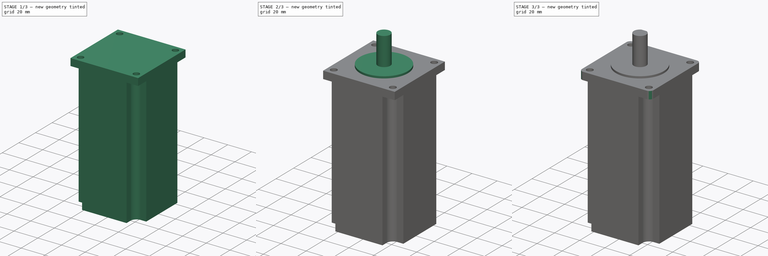
[diagram: build sequence overview — one tinted view per stage of 3, left to right]
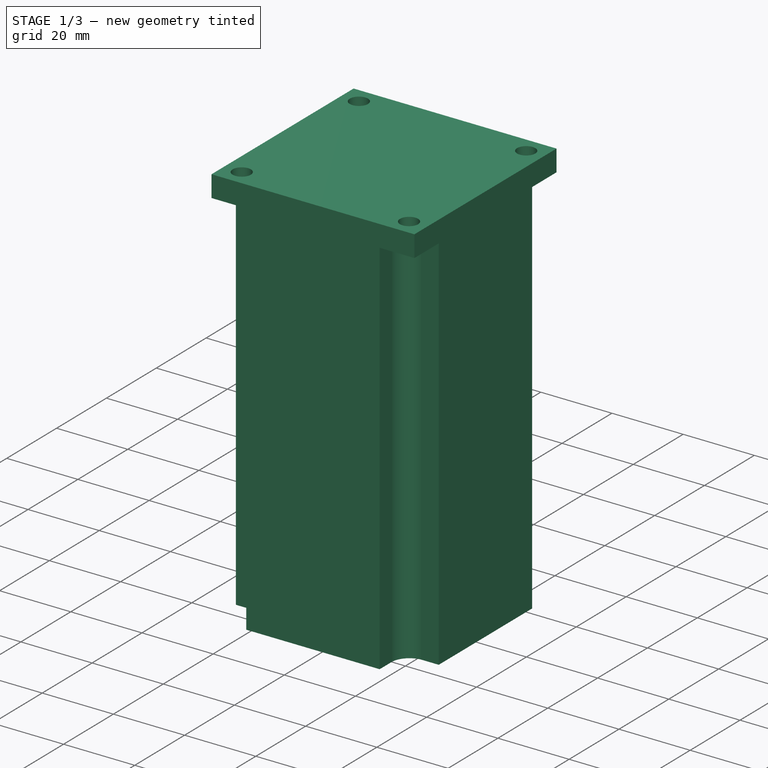
[diagram: stage 1 of 3 — iso view after this stage's code; geometry added in this stage tinted green]
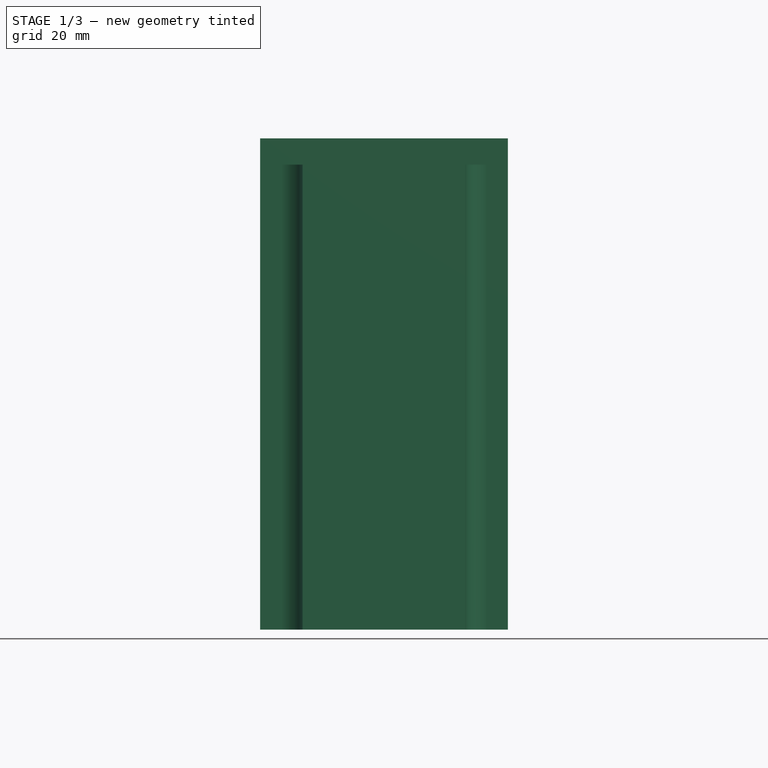
[diagram: stage 1 of 3 — front view after this stage's code; geometry added in this stage tinted green]
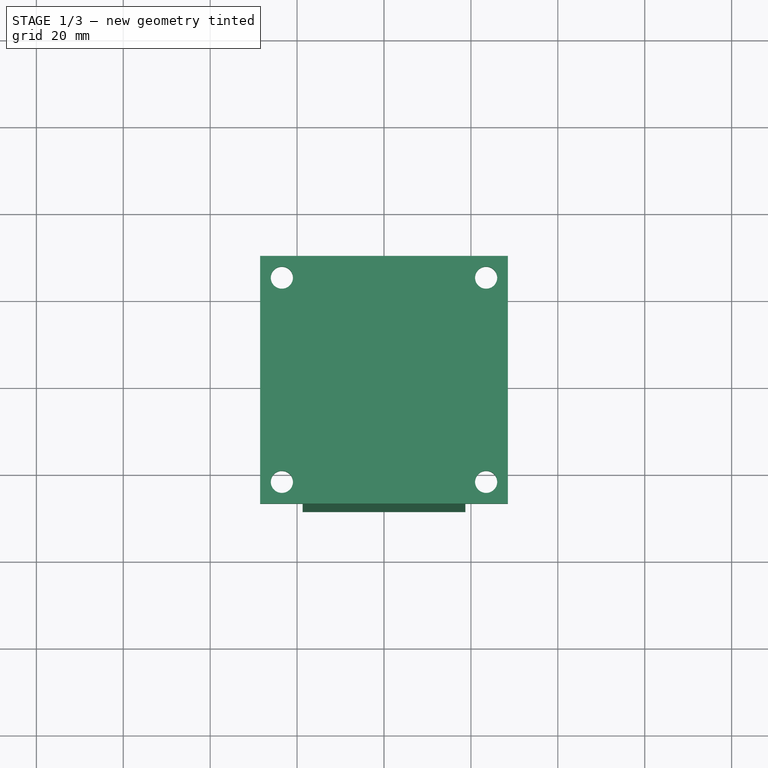
[diagram: stage 1 of 3 — top view after this stage's code; geometry added in this stage tinted green]
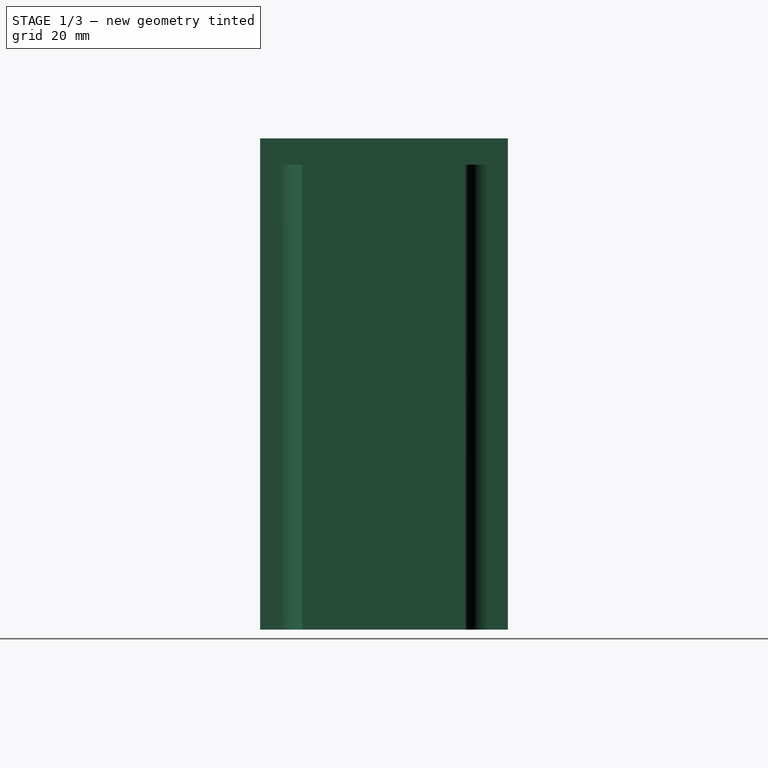
[diagram: stage 1 of 3 — right view after this stage's code; geometry added in this stage tinted green]
FCSTD DOCUMENT  (FreeCAD 0.18R16117 (Git))
Label: 23HS45-4204S
License: CreativeCommons Attribution-ShareAlike
LicenseURL: http://creativecommons.org/licenses/by-sa/4.0/
objects: Sketcher::SketchObject×5, PartDesign::Pad×3, PartDesign::Pocket×2, PartDesign::Fillet×1, PartDesign::Body×1
note: 17 computed .brp shape members not serialized (recipe doc carries the construction recipe); baked Part::Feature solids carry a one-line shape summary decoded from their .brp

FEATURE [Sketcher::SketchObject] Sketch
  MapMode = 5
  Support = -> [XY_Plane]
  sketch-geometry (12):
    g0: LineSegment StartX=-28.5001 StartY=28.5001 StartZ=0 EndX=28.5001 EndY=28.5001 EndZ=0
    g1: LineSegment StartX=28.5001 StartY=28.5001 StartZ=0 EndX=28.5001 EndY=-28.5001 EndZ=0
    g2: LineSegment StartX=28.5001 StartY=-28.5001 StartZ=0 EndX=-28.5001 EndY=-28.5001 EndZ=0
    g3: LineSegment StartX=-28.5001 StartY=-28.5001 StartZ=0 EndX=-28.5001 EndY=28.5001 EndZ=0
    g4: Circle CenterX=-23.5 CenterY=23.5 CenterZ=0 NormalX=0 NormalY=0 NormalZ=1 AngleXU=0 Radius=2.55
    g5: Circle CenterX=23.5 CenterY=23.5 CenterZ=0 NormalX=0 NormalY=0 NormalZ=1 AngleXU=0 Radius=2.55
    g6: Circle CenterX=-23.5 CenterY=-23.5 CenterZ=0 NormalX=0 NormalY=0 NormalZ=1 AngleXU=0 Radius=2.55
    g7: Circle CenterX=23.5 CenterY=-23.5 CenterZ=0 NormalX=0 NormalY=0 NormalZ=1 AngleXU=0 Radius=2.55
    g8: LineSegment [constr] StartX=-23.5 StartY=23.5 StartZ=0 EndX=23.5 EndY=23.5 EndZ=0
    g9: LineSegment [constr] StartX=23.5 StartY=23.5 StartZ=0 EndX=23.5 EndY=-23.5 EndZ=0
    g10: LineSegment [constr] StartX=23.5 StartY=-23.5 StartZ=0 EndX=-23.5 EndY=-23.5 EndZ=0
    g11: LineSegment [constr] StartX=-23.5 StartY=-23.5 StartZ=0 EndX=-23.5 EndY=23.5 EndZ=0
  constraints (32):
    c: Coincident(g0,g1)
    c: Coincident(g1,g2)
    c: Coincident(g2,g3)
    c: Coincident(g3,g0)
    c: Horizontal(g0)
    c: Horizontal(g2)
    c: Vertical(g1)
    c: Vertical(g3)
    c: Symmetric(g0,g0,g-2)
    c: Symmetric(g0,g1,g-1)
    c: Equal(g0,g1)
    c: DistanceY(g3,g3) = 57.0001  'MotorWidth'
    c: Coincident(g8,g9)
    c: Coincident(g9,g10)
    c: Coincident(g10,g11)
    c: Coincident(g11,g8)
    c: Horizontal(g8)
    c: Horizontal(g10)
    c: Vertical(g9)
    c: Vertical(g11)
    c: Symmetric(g9,g8,g-1)
    c: Symmetric(g8,g8,g-2)
    c: Equal(g9,g8)
    c: Coincident(g5,g8)
    c: Coincident(g4,g8)
    c: Coincident(g7,g9)
    c: Coincident(g6,g10)
    c: Equal(g5,g4)
    c: Equal(g4,g6)
    c: Equal(g6,g7)
    c: Radius(g5) = 2.55
    c: DistanceY(g9,g9) = 47
FEATURE [PartDesign::Pad] Pad
  Length = 113.03
  Length2 = 100.076
  Profile = -> Sketch
  Reversed = true
  Type = 0
FEATURE [Sketcher::SketchObject] Sketch001
  MapMode = 5
  Placement = pos=(0,0,-113.03) rot=(1,0,0;3.14159rad)
  Support = -> [Pad]
  sketch-geometry (32):
    g0: LineSegment [constr] StartX=-23.5 StartY=23.5 StartZ=0 EndX=23.5 EndY=23.5 EndZ=0
    g1: LineSegment [constr] StartX=23.5 StartY=23.5 StartZ=0 EndX=23.5 EndY=-23.5 EndZ=0
    g2: LineSegment [constr] StartX=23.5 StartY=-23.5 StartZ=0 EndX=-23.5 EndY=-23.5 EndZ=0
    g3: LineSegment [constr] StartX=-23.5 StartY=-23.5 StartZ=0 EndX=-23.5 EndY=23.5 EndZ=0
    g4: Circle [constr] CenterX=-23.5 CenterY=23.5 CenterZ=0 NormalX=0 NormalY=0 NormalZ=1 AngleXU=0 Radius=4.7625
    g5: Circle [constr] CenterX=23.5 CenterY=23.5 CenterZ=0 NormalX=0 NormalY=0 NormalZ=1 AngleXU=0 Radius=4.7625
    g6: Circle [constr] CenterX=23.5 CenterY=-23.5 CenterZ=0 NormalX=0 NormalY=0 NormalZ=1 AngleXU=0 Radius=4.7625
    g7: Circle [constr] CenterX=-23.5 CenterY=-23.5 CenterZ=0 NormalX=0 NormalY=0 NormalZ=1 AngleXU=0 Radius=4.74008
    g8: LineSegment [constr] StartX=-31.75 StartY=31.75 StartZ=0 EndX=31.75 EndY=31.75 EndZ=0
    g9: LineSegment [constr] StartX=31.75 StartY=31.75 StartZ=0 EndX=31.75 EndY=-31.75 EndZ=0
    g10: LineSegment [constr] StartX=31.75 StartY=-31.75 StartZ=0 EndX=-31.75 EndY=-31.75 EndZ=0
    g11: LineSegment [constr] StartX=-31.75 StartY=-31.75 StartZ=0 EndX=-31.75 EndY=31.75 EndZ=0
    g12: LineSegment StartX=-18.7375 StartY=23.5 StartZ=0 EndX=-18.7375 EndY=31.75 EndZ=0
    g13: LineSegment StartX=-23.5 StartY=18.7375 StartZ=0 EndX=-31.75 EndY=18.7375 EndZ=0
    g14: ArcOfCircle CenterX=-23.7099 CenterY=23.7099 CenterZ=0 NormalX=0 NormalY=0 NormalZ=1 AngleXU=0 Radius=4.9768 StartAngle=4.75457 EndAngle=6.241
    g15: LineSegment StartX=23.5 StartY=18.7375 StartZ=0 EndX=31.75 EndY=18.7375 EndZ=0
    g16: LineSegment StartX=18.7375 StartY=23.5 StartZ=0 EndX=18.7375 EndY=31.75 EndZ=0
    g17: ArcOfCircle CenterX=23.9084 CenterY=23.9084 CenterZ=0 NormalX=0 NormalY=0 NormalZ=1 AngleXU=0 Radius=5.18703 StartAngle=3.22041 EndAngle=4.63357
    g18: LineSegment StartX=18.7375 StartY=-23.5 StartZ=0 EndX=18.7375 EndY=-31.75 EndZ=0
    g19: LineSegment StartX=23.5 StartY=-18.7375 StartZ=0 EndX=31.75 EndY=-18.7375 EndZ=0
    g20: LineSegment StartX=-23.5 StartY=-18.7599 StartZ=0 EndX=-31.75 EndY=-18.7599 EndZ=0
    g21: LineSegment StartX=-18.7599 StartY=-23.5 StartZ=0 EndX=-18.7599 EndY=-31.75 EndZ=0
    g22: ArcOfCircle CenterX=24.0982 CenterY=-24.0982 CenterZ=0 NormalX=0 NormalY=0 NormalZ=1 AngleXU=0 Radius=5.39402 StartAngle=1.68193 EndAngle=3.03046
    g23: ArcOfCircle CenterX=-23.7687 CenterY=-23.7687 CenterZ=0 NormalX=0 NormalY=0 NormalZ=1 AngleXU=0 Radius=5.01598 StartAngle=0.0535933 EndAngle=1.5172
    g24: LineSegment StartX=-31.75 StartY=18.7375 StartZ=0 EndX=-31.75 EndY=31.75 EndZ=0
    g25: LineSegment StartX=-31.75 StartY=-18.7599 StartZ=0 EndX=-31.75 EndY=-31.75 EndZ=0
    g26: LineSegment StartX=-18.7599 StartY=-31.75 StartZ=0 EndX=-31.75 EndY=-31.75 EndZ=0
    g27: LineSegment StartX=18.7375 StartY=-31.75 StartZ=0 EndX=31.75 EndY=-31.75 EndZ=0
    g28: LineSegment StartX=31.75 StartY=-18.7375 StartZ=0 EndX=31.75 EndY=-31.75 EndZ=0
    g29: LineSegment StartX=31.75 StartY=18.7375 StartZ=0 EndX=31.75 EndY=31.75 EndZ=0
    g30: LineSegment StartX=18.7375 StartY=31.75 StartZ=0 EndX=31.75 EndY=31.75 EndZ=0
    g31: LineSegment StartX=-18.7375 StartY=31.75 StartZ=0 EndX=-31.75 EndY=31.75 EndZ=0
  constraints (83):
    c: Coincident(g0,g1)
    c: Coincident(g1,g2)
    c: Coincident(g2,g3)
    c: Coincident(g3,g0)
    c: Horizontal(g2)
    c: Vertical(g1)
    c: Symmetric(g0,g2,g-1)
    c: Symmetric(g0,g0,g-2)
    c: Equal(g0,g3)
    c: DistanceX(g0,g0) = 47
    c: Coincident(g4,g0)
    c: Coincident(g5,g0)
    c: Coincident(g6,g1)
    c: Coincident(g7,g2)
    c: Equal(g6,g5)
    c: Equal(g5,g4)
    c: Radius(g5) = 4.7625
    c: Coincident(g8,g9)
    c: Coincident(g9,g10)
    c: Coincident(g10,g11)
    c: Coincident(g11,g8)
    c: Horizontal(g8)
    c: Vertical(g11)
    c: Symmetric(g9,g10,g-2)
    c: Symmetric(g9,g8,g-1)
    c: Equal(g9,g8)
    c: DistanceY(g9,g9) = 63.5
    c: PointOnObject(g12,g0)
    c: PointOnObject(g12,g8)
    c: Vertical(g12)
    c: Tangent(g12,g4)
    c: PointOnObject(g13,g3)
    c: Horizontal(g13)
    c: PointOnObject(g13,g11)
    c: Tangent(g13,g4)
    c: Coincident(g14,g12)
    c: Coincident(g14,g13)
    c: PointOnObject(g15,g1)
    c: PointOnObject(g15,g9)
    c: Horizontal(g15)
    c: PointOnObject(g16,g0)
    c: PointOnObject(g16,g8)
    c: Vertical(g16)
    c: Tangent(g5,g16)
    c: Tangent(g15,g5)
    c: Coincident(g17,g16)
    c: Coincident(g17,g15)
    c: PointOnObject(g18,g2)
    c: Vertical(g18)
    c: PointOnObject(g19,g1)
    c: PointOnObject(g19,g9)
    c: PointOnObject(g20,g3)
    c: PointOnObject(g21,g2)
    c: Vertical(g21)
    c: Horizontal(g20)
    c: Horizontal(g19)
    c: Tangent(g19,g6)
    c: Tangent(g18,g6)
    c: Coincident(g22,g19)
    c: Coincident(g22,g18)
    c: Tangent(g21,g7)
    c: Tangent(g20,g7)
    c: Coincident(g23,g20)
    c: Coincident(g23,g21)
    c: Coincident(g24,g13)
    c: Coincident(g24,g8)
    c: Coincident(g25,g20)
    c: Coincident(g25,g10)
    c: Coincident(g26,g21)
    c: Coincident(g26,g25)
    c: Coincident(g27,g18)
    c: Coincident(g27,g9)
    c: Coincident(g28,g19)
    c: Coincident(g28,g27)
    c: Coincident(g29,g15)
    c: Coincident(g29,g8)
    c: Coincident(g30,g16)
    c: Coincident(g30,g29)
    c: Coincident(g31,g12)
    c: Coincident(g31,g24)
    c: PointOnObject(g20,g11)
    c: PointOnObject(g21,g10)
    c: PointOnObject(g18,g10)
FEATURE [PartDesign::Pocket] Pocket
  BaseFeature = -> Pad
  Length = 107
  Length2 = 99.9998
  Profile = -> Sketch001
  Type = 0
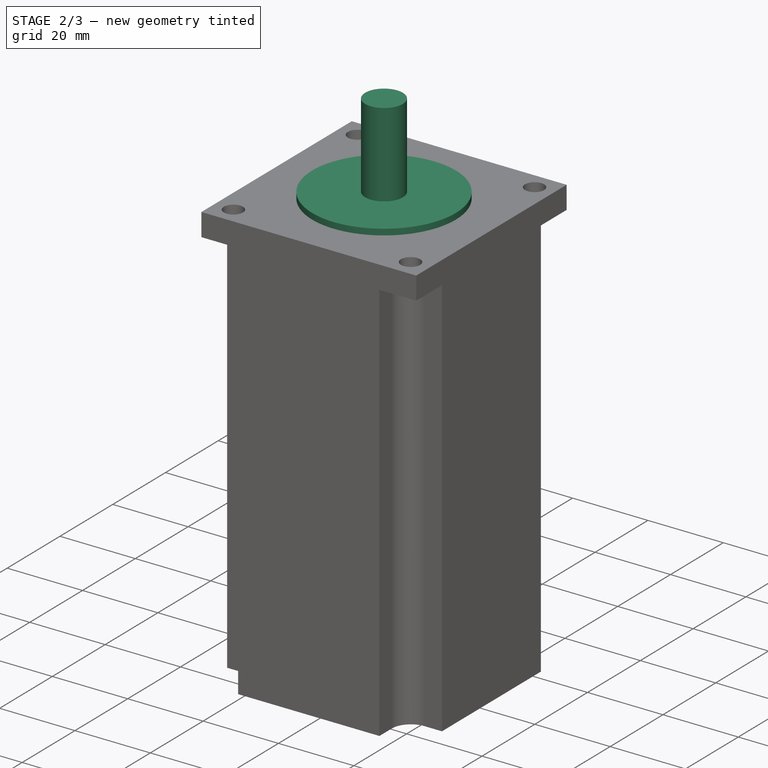
[diagram: stage 2 of 3 — iso view after this stage's code; geometry added in this stage tinted green]
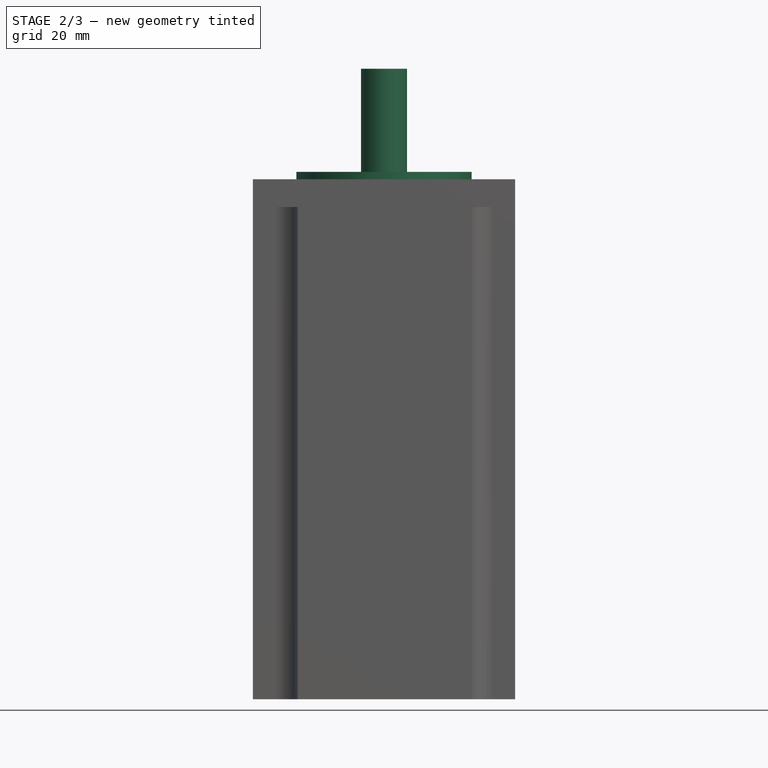
[diagram: stage 2 of 3 — front view after this stage's code; geometry added in this stage tinted green]
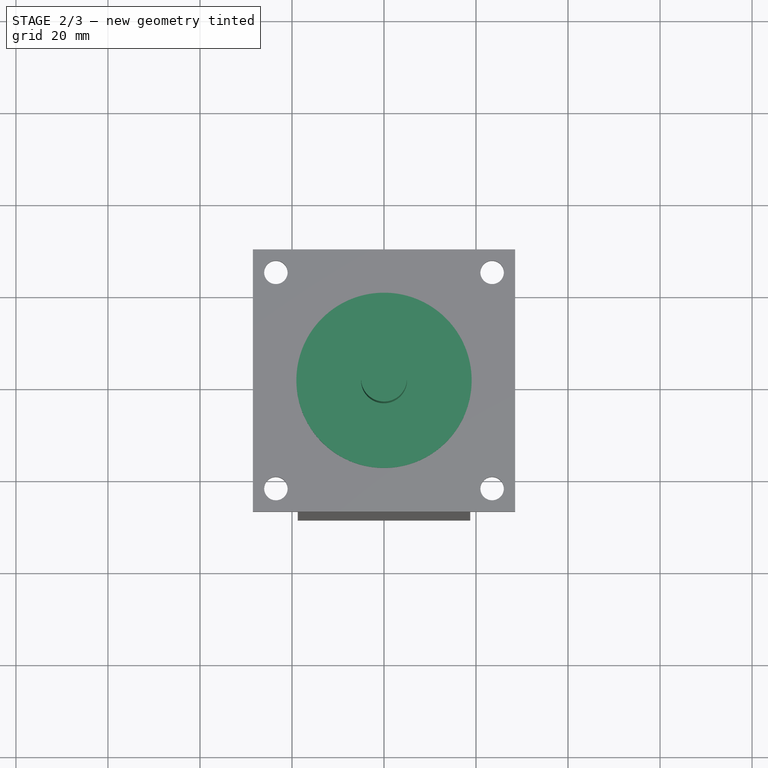
[diagram: stage 2 of 3 — top view after this stage's code; geometry added in this stage tinted green]
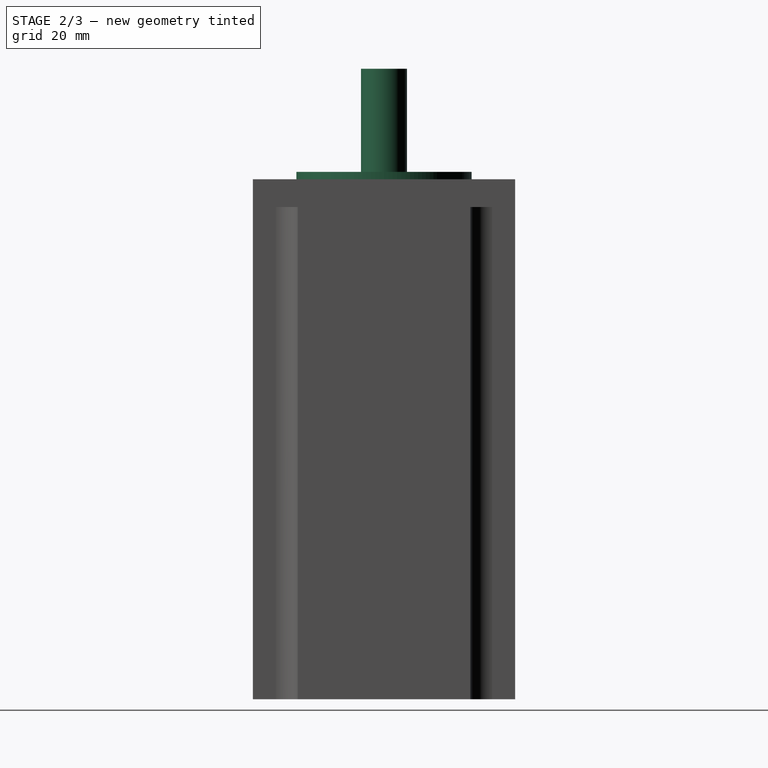
[diagram: stage 2 of 3 — right view after this stage's code; geometry added in this stage tinted green]
FEATURE [Sketcher::SketchObject] Sketch002
  MapMode = 5
  Support = -> [Pocket]
  sketch-geometry (1):
    g0: Circle CenterX=0 CenterY=0 CenterZ=0 NormalX=0 NormalY=0 NormalZ=1 AngleXU=0 Radius=19.05
  constraints (2):
    c: Coincident(g0,g-1)
    c: Radius(g0) = 19.05
FEATURE [PartDesign::Pad] Pad001
  BaseFeature = -> Pocket
  Length = 1.6
  Length2 = 99.9998
  Profile = -> Sketch002
  Type = 0
FEATURE [Sketcher::SketchObject] Sketch003
  MapMode = 5
  Support = -> [Pad001]
  sketch-geometry (1):
    g0: Circle CenterX=0 CenterY=0 CenterZ=0 NormalX=0 NormalY=0 NormalZ=1 AngleXU=0 Radius=5
  constraints (2):
    c: Coincident(g0,g-1)
    c: Radius(g0) = 5
FEATURE [PartDesign::Pad] Pad002
  BaseFeature = -> Pad001
  Length = 24
  Length2 = 99.9998
  Profile = -> Sketch003
  Type = 0
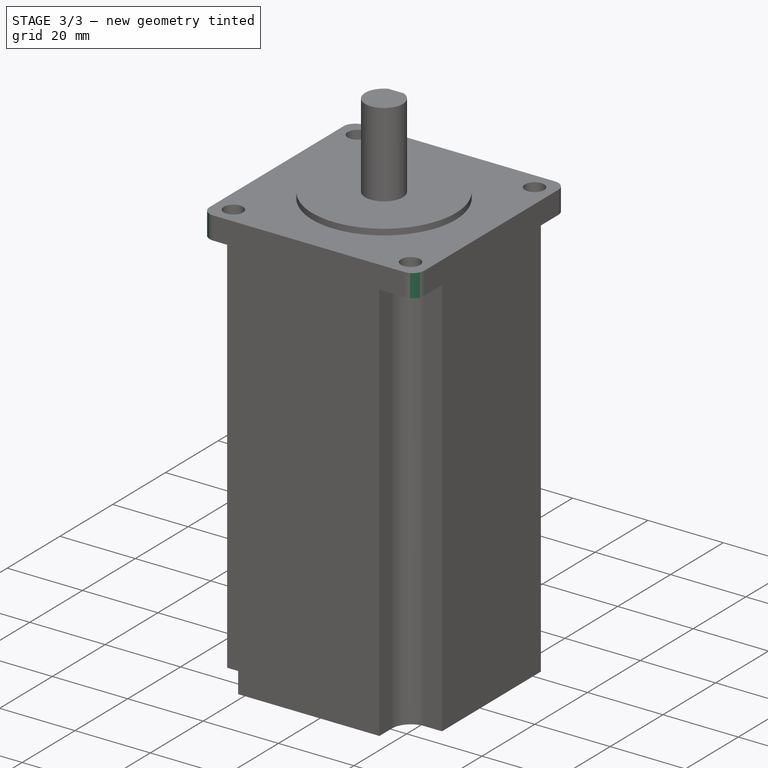
[diagram: stage 3 of 3 — iso view after this stage's code; geometry added in this stage tinted green]
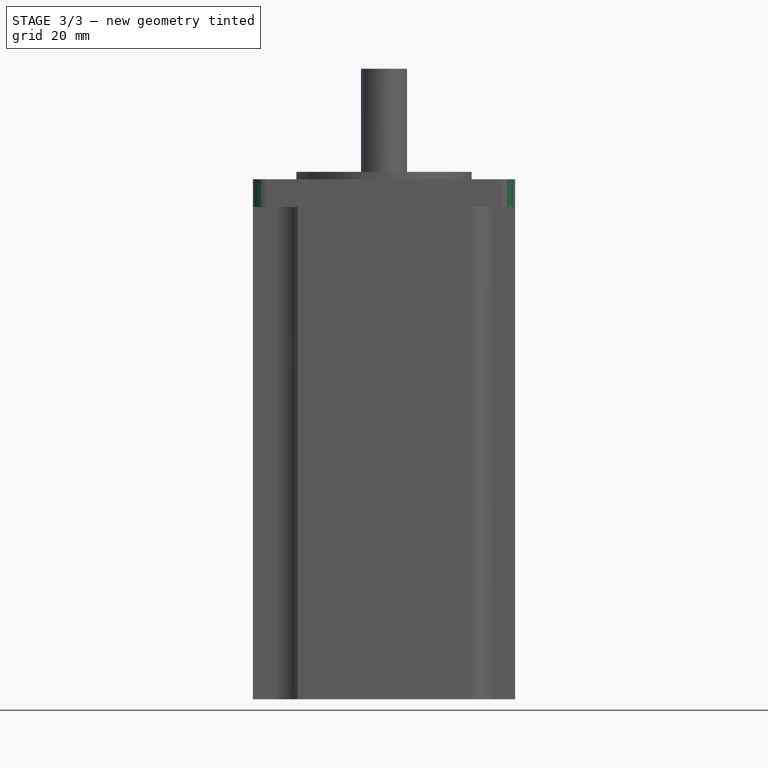
[diagram: stage 3 of 3 — front view after this stage's code; geometry added in this stage tinted green]
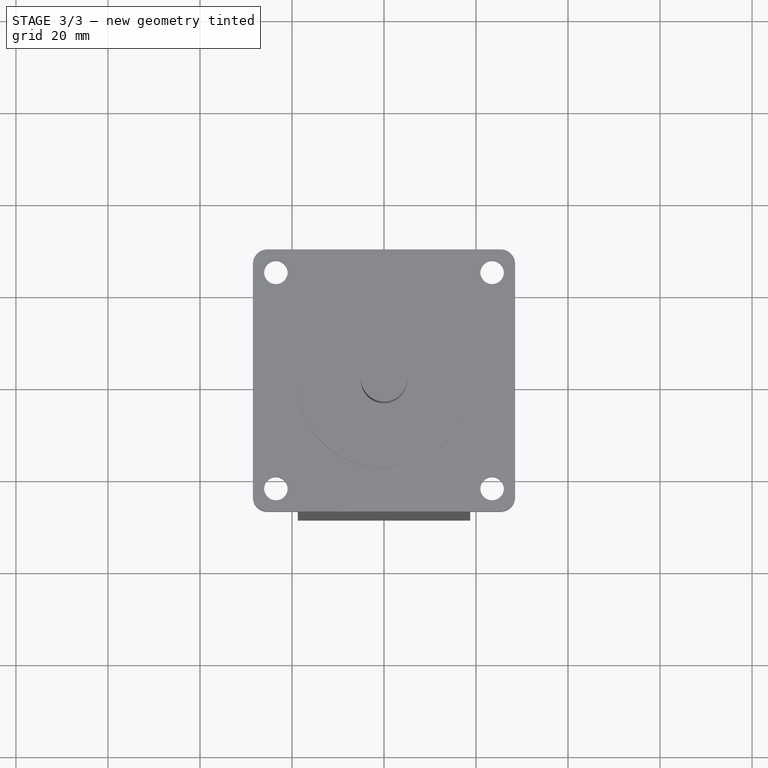
[diagram: stage 3 of 3 — top view after this stage's code; geometry added in this stage tinted green]
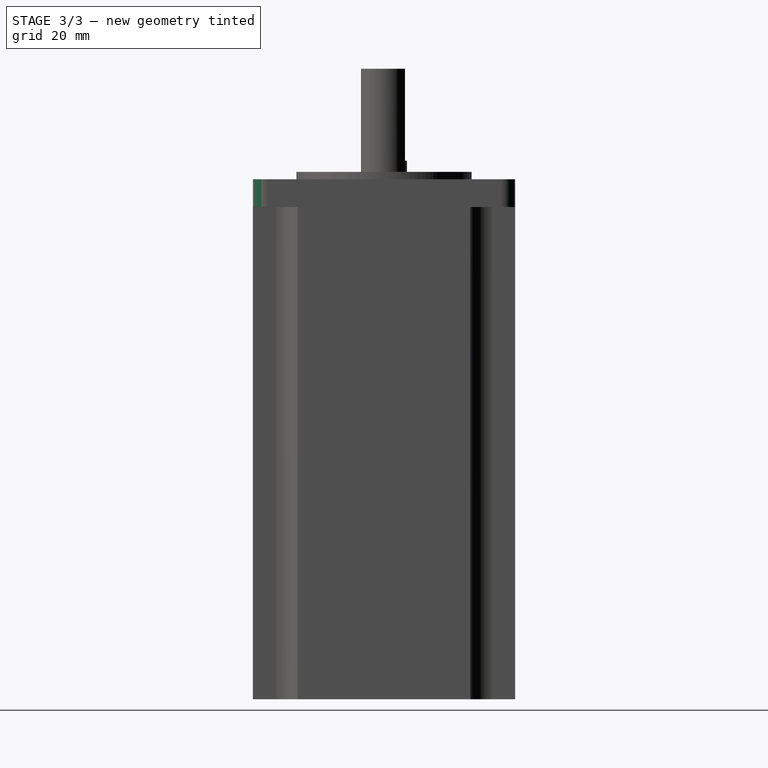
[diagram: stage 3 of 3 — right view after this stage's code; geometry added in this stage tinted green]
FEATURE [PartDesign::Fillet] Fillet
  Base = -> Pad002 [Edge2,Edge17,Edge8,Edge51]
  BaseFeature = -> Pad002
  Radius = 3.175
FEATURE [Sketcher::SketchObject] Sketch004
  MapMode = 5
  Placement = pos=(0,0,24) rot=(0,0,1;0rad)
  Support = -> [Fillet]
  sketch-geometry (4):
    g0: LineSegment StartX=-15.302 StartY=12.8843 StartZ=0 EndX=15.302 EndY=12.8843 EndZ=0
    g1: LineSegment StartX=15.302 StartY=12.8843 StartZ=0 EndX=15.302 EndY=4.572 EndZ=0
    g2: LineSegment StartX=-15.302 StartY=4.572 StartZ=0 EndX=-15.302 EndY=12.8843 EndZ=0
    g3: LineSegment StartX=15.302 StartY=4.572 StartZ=0 EndX=-15.302 EndY=4.572 EndZ=0
  constraints (4):
    c: DistanceY(g-1,g1) = 4.572
    c: Coincident(g3,g1)
    c: Coincident(g3,g2)
    c: Horizontal(g3)
FEATURE [PartDesign::Pocket] Pocket001
  BaseFeature = -> Fillet
  Length = 20
  Length2 = 99.9998
  Profile = -> Sketch004
  Type = 0
FEATURE [PartDesign::Body] Body
  Group = -> [Sketch,Pad,Sketch001,Pocket,Sketch002,Pad001,Sketch003,Pad002,Fillet,Sketch004,Pocket001]
  Origin = -> Origin
  Tip = -> Pocket001
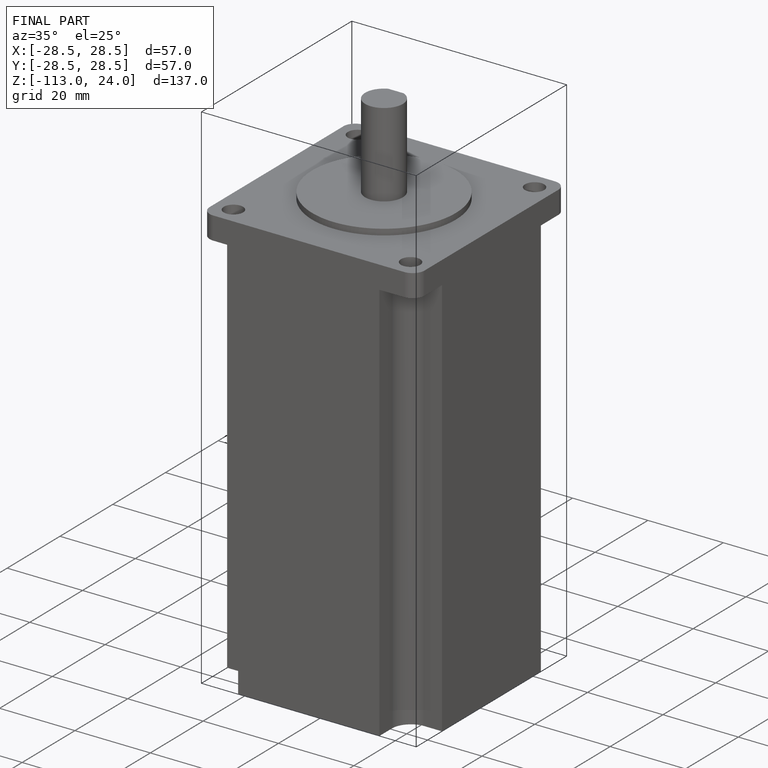
[diagram: finished part — iso view with bounding-box wireframe]
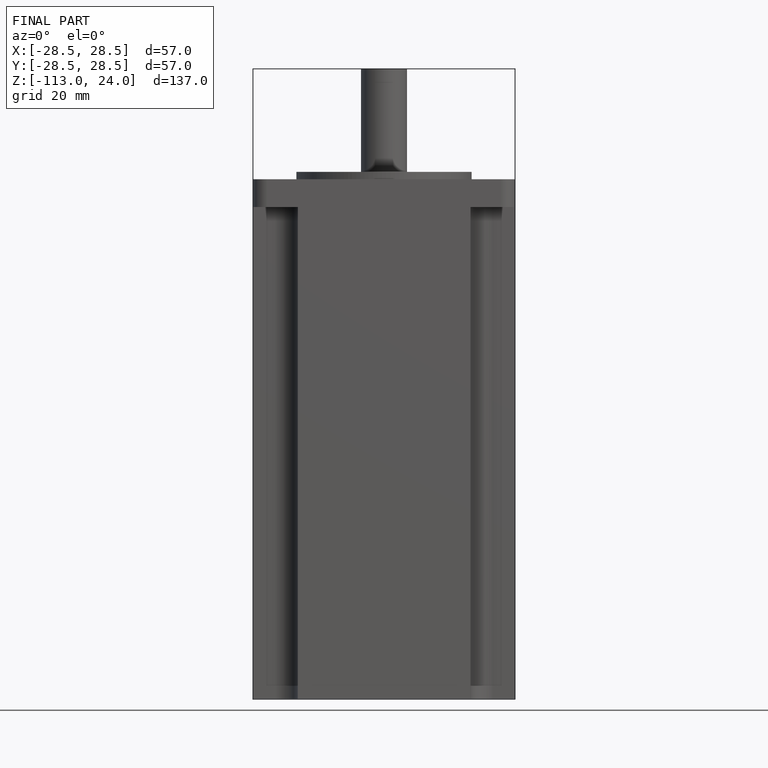
[diagram: finished part — front view with bounding-box wireframe]
